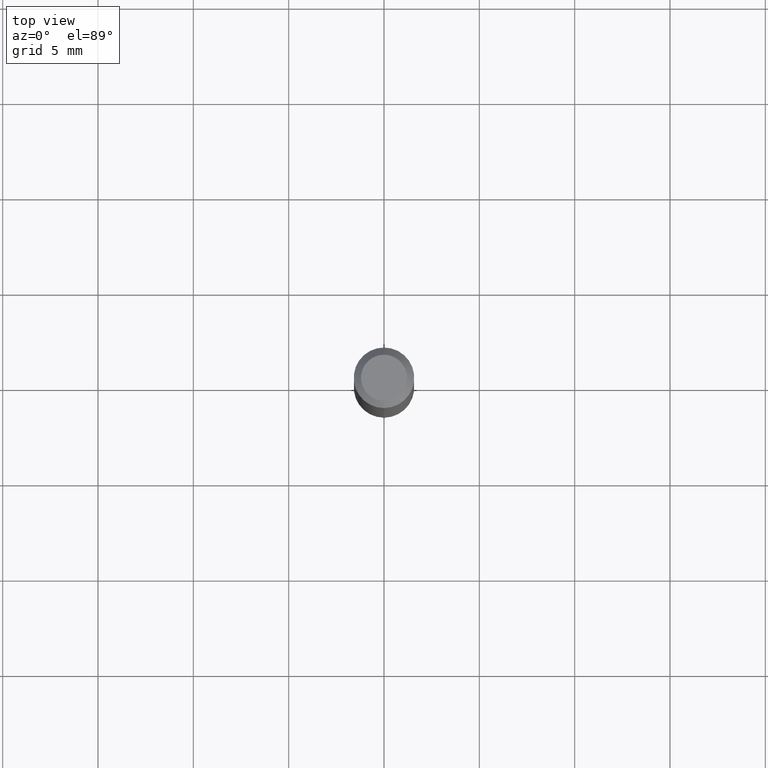
[diagram: clean part render]
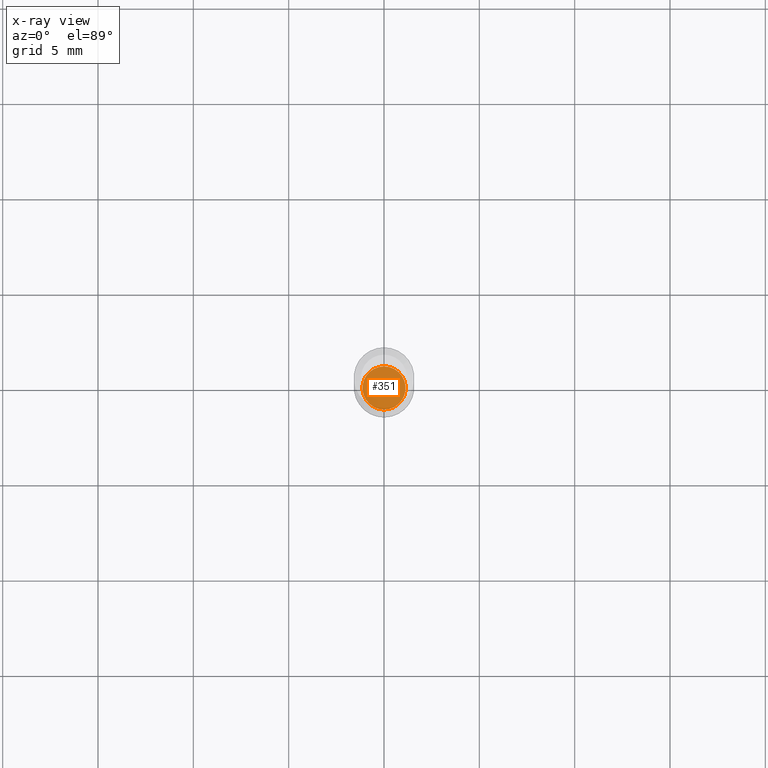
[diagram: x-ray — body ghosted, one internal face saturated and labeled with its STEP entity id]
A machine part, top view, then the same camera in x-ray: the body is ghosted and one INTERNAL B-rep face — a face not visible from any outside direction — is saturated and labeled: STEP entity #351.
In plain terms, the highlighted planar face has unit normal (-0, 0, 1).
Its self-contained STEP definition (entity closure, byte-faithful):
#8 = AXIS2_PLACEMENT_3D ( 'NONE', #91, #414, #449 ) ;
#26 = PLANE ( 'NONE',  #222 ) ;
#50 = EDGE_CURVE ( 'NONE', #408, #461, #60, .T. ) ;
#56 = FACE_OUTER_BOUND ( 'NONE', #330, .T. ) ;
#60 = CIRCLE ( 'NONE', #452, 0.04449999999999999789 ) ;
#91 = CARTESIAN_POINT ( 'NONE',  ( 3.007904205623538192E-29, -4.294554162062823521E-15, -1.230000000000000204 ) ) ;
#96 = CIRCLE ( 'NONE', #8, 0.04449999999999999789 ) ;
#154 = DIRECTION ( 'NONE',  ( -6.982962677686265922E-15, -1.000000000000000000, 3.069492127712655324E-15 ) ) ;
#187 = DIRECTION ( 'NONE',  ( -2.445450573677672764E-29, 3.491507448831563559E-15, 1.000000000000000000 ) ) ;
#188 = DIRECTION ( 'NONE',  ( -2.445450573677672483E-29, 3.491507448831563559E-15, 1.000000000000000000 ) ) ;
#190 = CARTESIAN_POINT ( 'NONE',  ( 3.007904205623538192E-29, -4.294554162062823521E-15, -1.230000000000000204 ) ) ;
#209 = CARTESIAN_POINT ( 'NONE',  ( 3.179678742526750430E-16, 0.04449999999999570272, -1.230000000000000204 ) ) ;
#222 = AXIS2_PLACEMENT_3D ( 'NONE', #375, #188, #484 ) ;
#290 = ORIENTED_EDGE ( 'NONE', *, *, #310, .F. ) ;
#310 = EDGE_CURVE ( 'NONE', #461, #408, #96, .T. ) ;
#330 = EDGE_LOOP ( 'NONE', ( #290, #367 ) ) ;
#351 = ADVANCED_FACE ( 'NONE', ( #56 ), #26, .F. ) ;
#367 = ORIENTED_EDGE ( 'NONE', *, *, #50, .F. ) ;
#375 = CARTESIAN_POINT ( 'NONE',  ( 3.007904205623538192E-29, -4.294554162062823521E-15, -1.230000000000000204 ) ) ;
#389 = CARTESIAN_POINT ( 'NONE',  ( -3.107418391570087519E-16, -0.04450000000000429307, -1.229999999999999982 ) ) ;
#408 = VERTEX_POINT ( 'NONE', #209 ) ;
#414 = DIRECTION ( 'NONE',  ( -2.445450573677672764E-29, 3.491507448831563559E-15, 1.000000000000000000 ) ) ;
#449 = DIRECTION ( 'NONE',  ( -6.982962677686265922E-15, -1.000000000000000000, 3.069492127712655324E-15 ) ) ;
#452 = AXIS2_PLACEMENT_3D ( 'NONE', #190, #187, #154 ) ;
#461 = VERTEX_POINT ( 'NONE', #389 ) ;
#484 = DIRECTION ( 'NONE',  ( -6.982962677686265922E-15, -1.000000000000000000, 3.491507448831563559E-15 ) ) ;